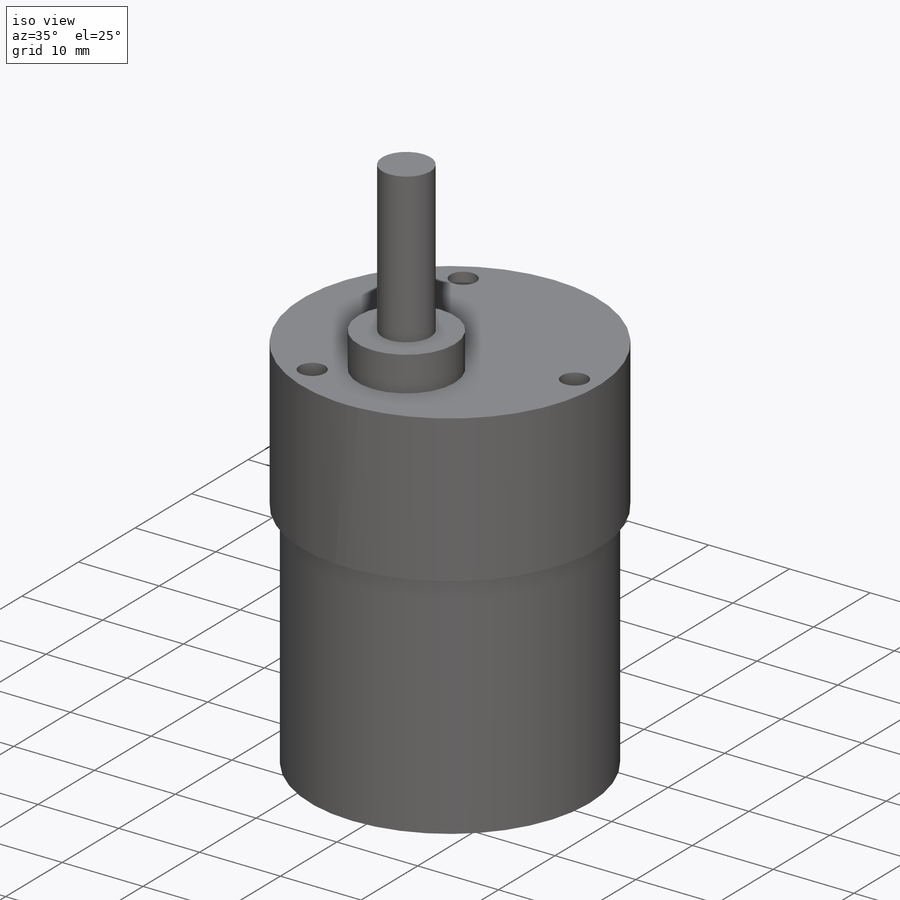
[diagram: iso view]
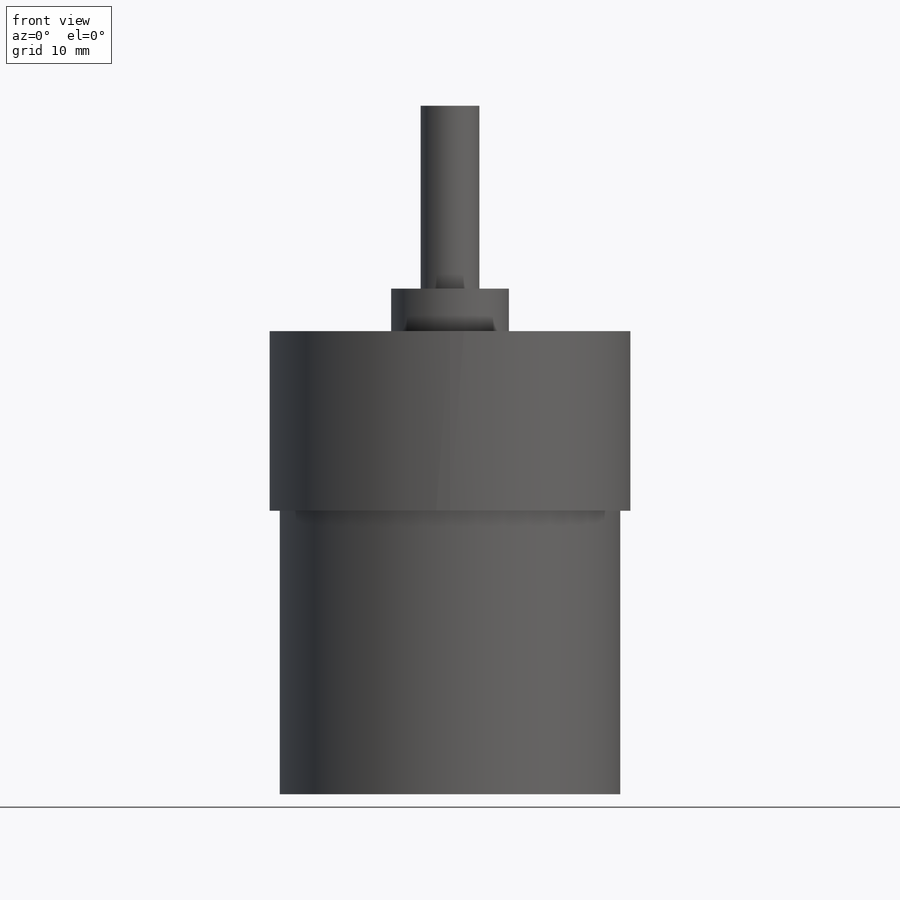
[diagram: front view]
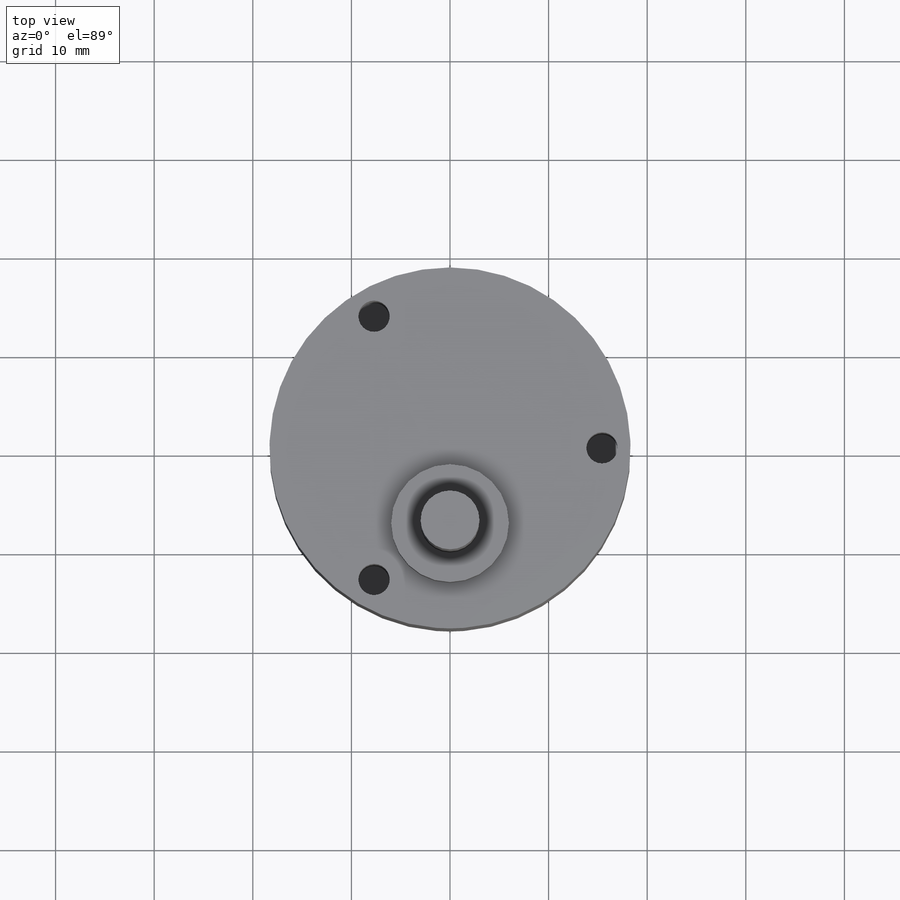
[diagram: top view]
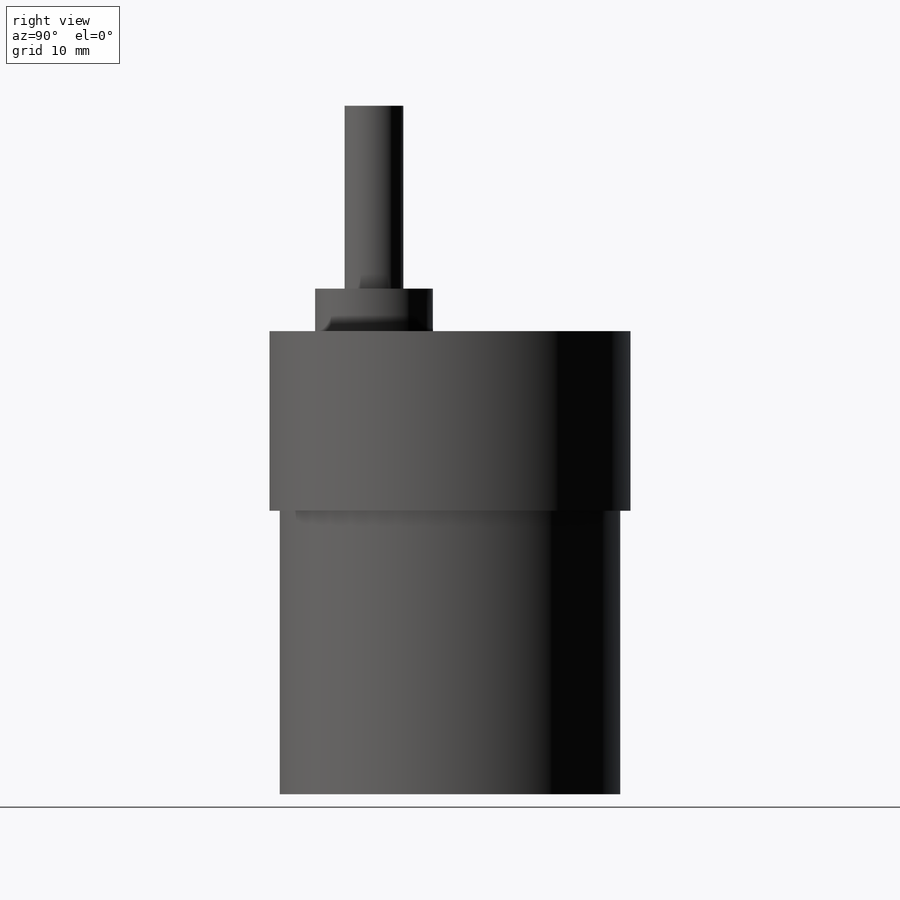
[diagram: right view]
SOLIDWORKS PART (.sldprt)
format: sldprt  version: not decoded by parser v0  size: 173,568 bytes
history: native  units: mm
features: sketch x5, extrude x4, material x1, cut_extrude x1 (+11 scaffold rows collapsed)
feature tree (22):
  scaffold x11  (default folders/planes/origin — collapsed)
  material  "Material <not specified>"
  sketch  "Sketch1"  dims[D1=34.5186mm]
  extrude  "Boss-Extrude1"  Depth=28.7528mm
  sketch  "Sketch2"  dims[D1=36.6141mm]
  extrude  "Boss-Extrude2"  Depth=18.2118mm
  sketch  "Sketch3"  dims[c1.D2=11.938mm c1.D3=3.175mm c1.D1=26.6954mm c2.D3=~7.706298mm]
  cut_extrude  "Cut-Extrude1"  Depth=12.7mm
  sketch  "Sketch4"  dims[c1.D2=11.938mm c1.D1=26.6954mm c2.D2=26.6954mm c2.D3=36.6141mm c2.D4=36.6141mm]
  extrude  "Boss-Extrude3"  Depth=4.318mm
  sketch  "Sketch5"  dims[D1=5.9563mm]
  extrude  "Boss-Extrude4"  Depth=18.542mm
decode coverage: 10 of 10 modeling features carry decoded parameters
note: ~ marks probable driven/reference dimensions
note: suppression state not decoded; provenance and decode notes live in map.json
